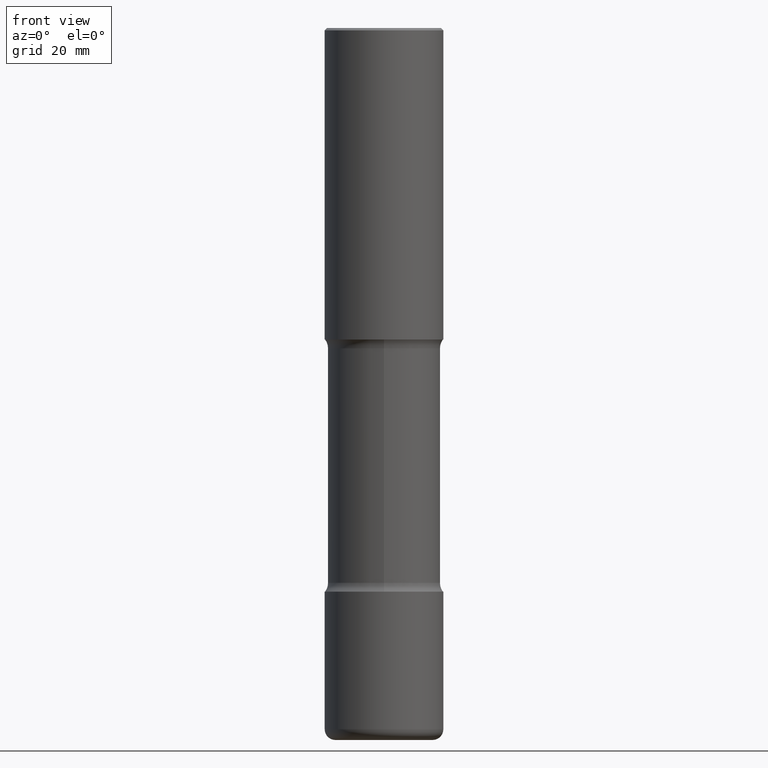
[diagram: clean part render]
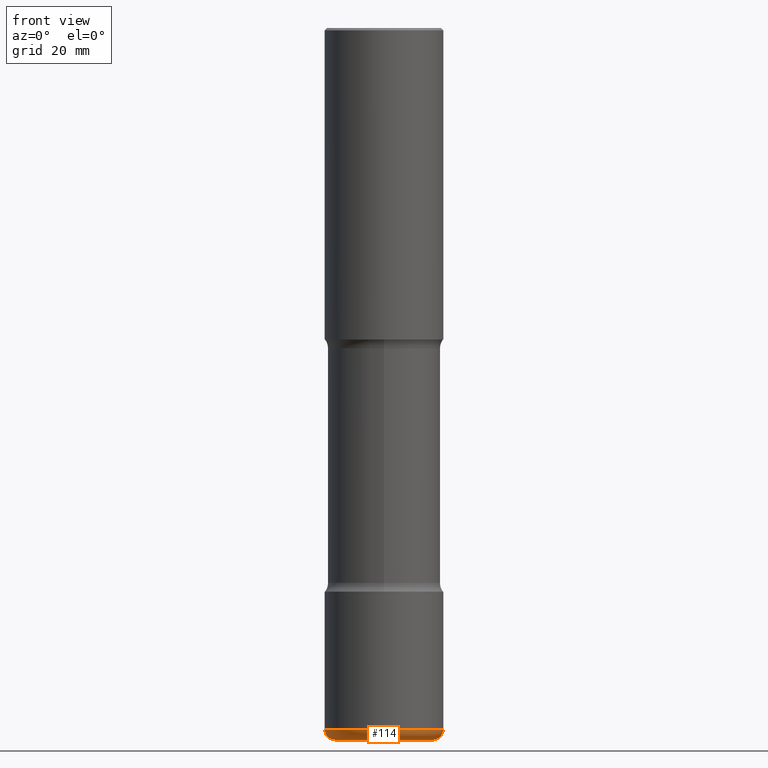
[diagram: same view with one face highlighted and labeled with its STEP entity id]
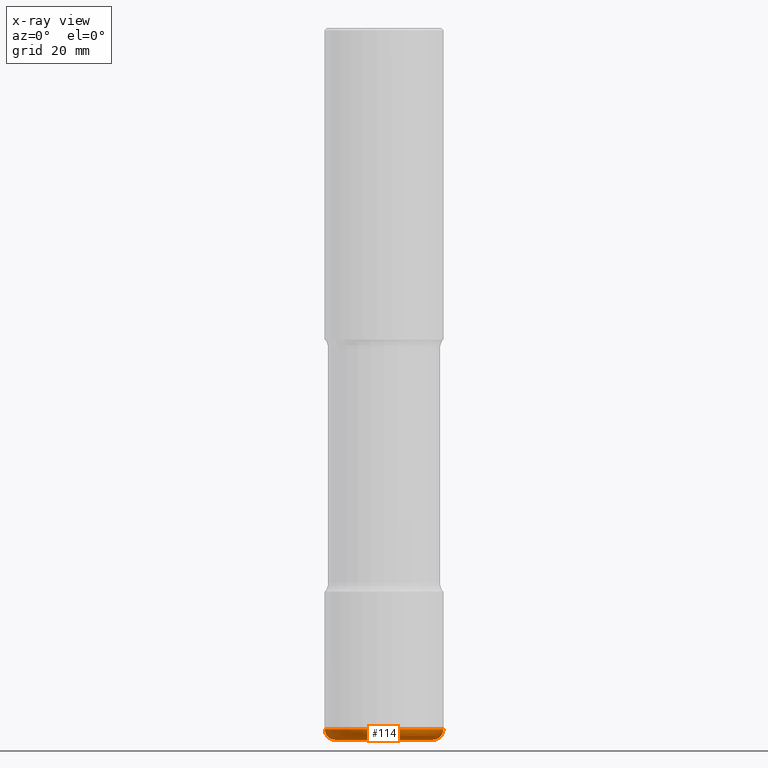
[diagram: x-ray of the same camera — body ghosted, the highlighted face saturated]
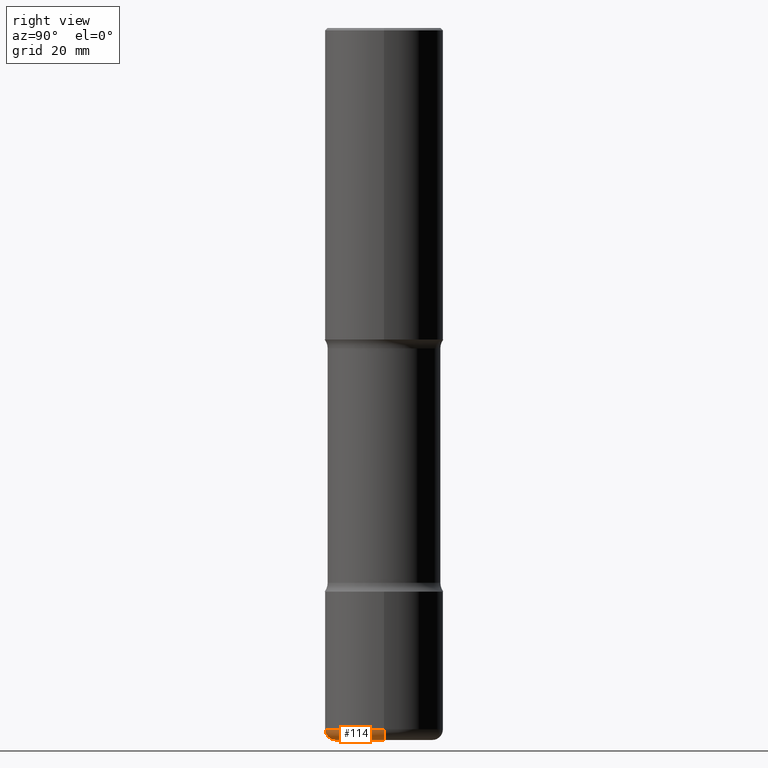
[diagram: same view with one face highlighted and labeled with its STEP entity id]
A machine part, front view. The second image highlights one B-rep face of the part: STEP entity #114.
The next image is the same camera in x-ray: the body ghosted, the highlighted face saturated — about 0% of this face is hidden behind the body in this view.
A second angle (right view) of the same face is appended — the face is thin or edge-on in the first view.
In plain terms, the highlighted toroidal blend (fillet) surface has major radius 10.414 mm and minor (blend) radius 2.286 mm.
Its self-contained STEP definition (entity closure, byte-faithful):
#8 = DIRECTION ( 'NONE',  ( 1.000000000000000000, -6.982962677686261977E-15, 0.000000000000000000 ) ) ;
#17 = DIRECTION ( 'NONE',  ( -2.445468806185136597E-29, 3.491481338843145583E-15, 1.000000000000000000 ) ) ;
#31 = DIRECTION ( 'NONE',  ( 1.000000000000000000, -6.982962677686269077E-15, 4.883557194083113462E-29 ) ) ;
#32 = AXIS2_PLACEMENT_3D ( 'NONE', #268, #138, #312 ) ;
#68 = DIRECTION ( 'NONE',  ( 7.105427357601001859E-15, 1.000000000000000000, -3.491481338843145583E-15 ) ) ;
#69 = AXIS2_PLACEMENT_3D ( 'NONE', #120, #470, #83 ) ;
#70 = CARTESIAN_POINT ( 'NONE',  ( 0.4100000000000005307, -2.381190273091023638E-14, -5.999999999999998224 ) ) ;
#73 = ORIENTED_EDGE ( 'NONE', *, *, #505, .T. ) ;
#75 = VERTEX_POINT ( 'NONE', #280 ) ;
#83 = DIRECTION ( 'NONE',  ( 1.000000000000000000, -6.982962677686257244E-15, 0.000000000000000000 ) ) ;
#92 = VERTEX_POINT ( 'NONE', #416 ) ;
#97 = TOROIDAL_SURFACE ( 'NONE', #489, 0.4100000000000005307, 0.08999999999999962197 ) ;
#101 = EDGE_CURVE ( 'NONE', #92, #464, #429, .T. ) ;
#114 = ADVANCED_FACE ( 'NONE', ( #150 ), #97, .T. ) ;
#120 = CARTESIAN_POINT ( 'NONE',  ( 0.4100000000000005307, -2.349766941041436258E-14, -5.909999999999999254 ) ) ;
#123 = VERTEX_POINT ( 'NONE', #70 ) ;
#138 = DIRECTION ( 'NONE',  ( -2.445468806185136597E-29, 3.491481338843145583E-15, 1.000000000000000000 ) ) ;
#150 = FACE_OUTER_BOUND ( 'NONE', #153, .T. ) ;
#153 = EDGE_LOOP ( 'NONE', ( #259, #472, #73, #254 ) ) ;
#174 = CIRCLE ( 'NONE', #446, 0.4100000000000005307 ) ;
#181 = AXIS2_PLACEMENT_3D ( 'NONE', #455, #68, #229 ) ;
#229 = DIRECTION ( 'NONE',  ( -1.000000000000000000, 7.105427357601001859E-15, 0.000000000000000000 ) ) ;
#254 = ORIENTED_EDGE ( 'NONE', *, *, #405, .F. ) ;
#259 = ORIENTED_EDGE ( 'NONE', *, *, #101, .F. ) ;
#268 = CARTESIAN_POINT ( 'NONE',  ( 1.445272064455415343E-28, -2.063465471256298629E-14, -5.909999999999999254 ) ) ;
#280 = CARTESIAN_POINT ( 'NONE',  ( 0.5000000000000002220, -2.412613605140612280E-14, -5.909999999999999254 ) ) ;
#285 = EDGE_CURVE ( 'NONE', #92, #123, #174, .T. ) ;
#312 = DIRECTION ( 'NONE',  ( 1.000000000000000000, -6.982962677686264344E-15, 0.000000000000000000 ) ) ;
#370 = DIRECTION ( 'NONE',  ( -2.445468806185136597E-29, 3.491481338843145583E-15, 1.000000000000000000 ) ) ;
#405 = EDGE_CURVE ( 'NONE', #464, #75, #530, .T. ) ;
#416 = CARTESIAN_POINT ( 'NONE',  ( -0.4100000000000005307, -1.755880192510246999E-14, -5.999999999999998224 ) ) ;
#429 = CIRCLE ( 'NONE', #181, 0.08999999999999958034 ) ;
#446 = AXIS2_PLACEMENT_3D ( 'NONE', #525, #17, #8 ) ;
#455 = CARTESIAN_POINT ( 'NONE',  ( -0.4100000000000005307, -1.772142949594656820E-14, -5.909999999999999254 ) ) ;
#457 = CARTESIAN_POINT ( 'NONE',  ( 1.445272064455415343E-28, -2.063465471256298629E-14, -5.909999999999999254 ) ) ;
#464 = VERTEX_POINT ( 'NONE', #475 ) ;
#470 = DIRECTION ( 'NONE',  ( -6.982962677686266711E-15, -1.000000000000000000, 3.491481338843145583E-15 ) ) ;
#472 = ORIENTED_EDGE ( 'NONE', *, *, #285, .T. ) ;
#475 = CARTESIAN_POINT ( 'NONE',  ( -0.5000000000000002220, -1.708194103376247905E-14, -5.909999999999999254 ) ) ;
#489 = AXIS2_PLACEMENT_3D ( 'NONE', #457, #370, #31 ) ;
#505 = EDGE_CURVE ( 'NONE', #123, #75, #556, .T. ) ;
#525 = CARTESIAN_POINT ( 'NONE',  ( 1.467281283711081510E-28, -2.094888803305886640E-14, -5.999999999999998224 ) ) ;
#530 = CIRCLE ( 'NONE', #32, 0.5000000000000004441 ) ;
#556 = CIRCLE ( 'NONE', #69, 0.08999999999999958034 ) ;